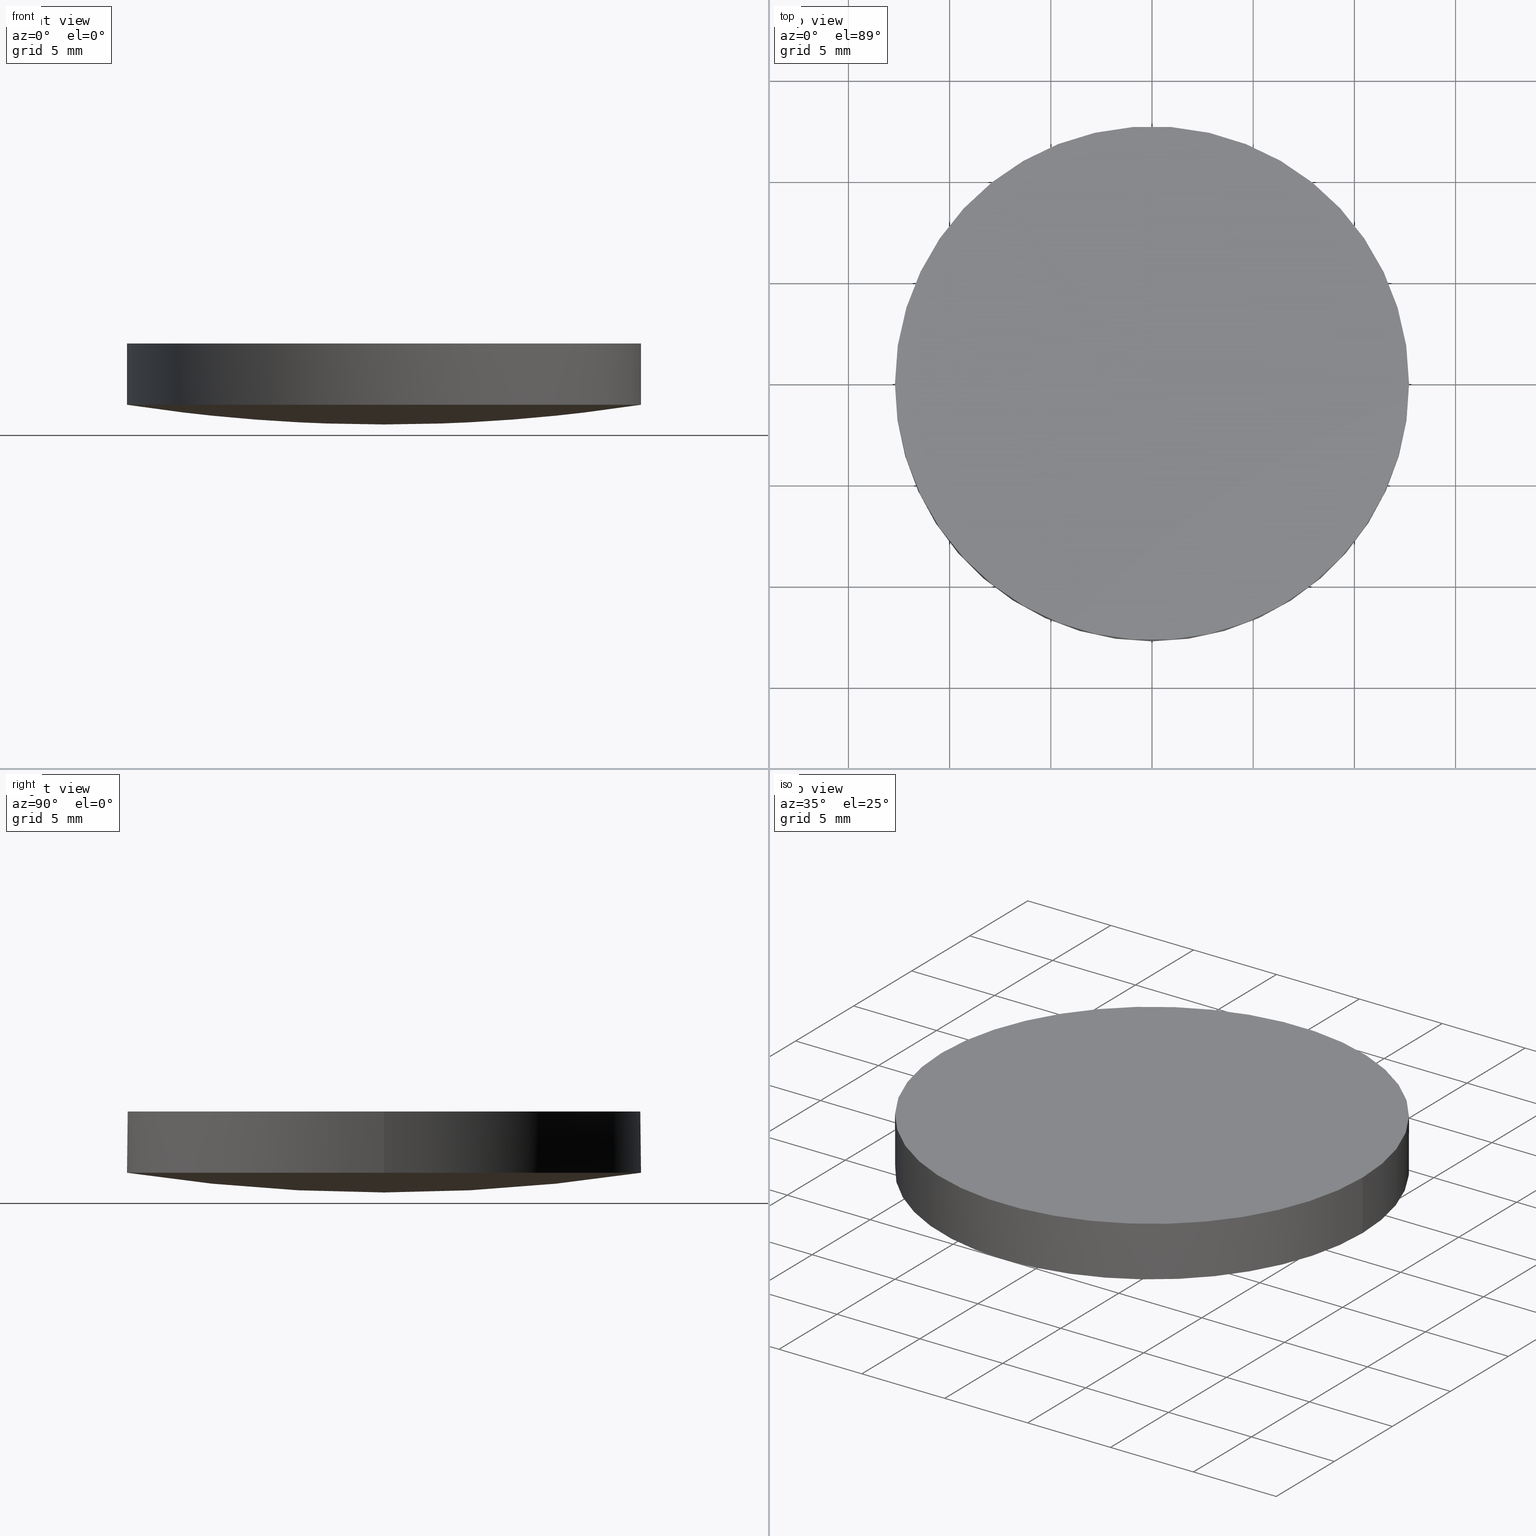
[diagram: canonical four-view strip — front | top / right | iso, engineering-drawing reading convention]
A machine part, canonical four-view strip (front | top / right | iso — engineering-drawing reading convention). The complete STEP part file that produces these views, byte-faithful:
ISO-10303-21;
HEADER;
FILE_DESCRIPTION (( 'STEP AP203' ),
    '1' );
FILE_NAME ('110-1218E UVFS pl-cx 25.4 F175.STEP',
    '2018-12-13T15:01:03',
    ( '' ),
    ( '' ),
    'SwSTEP 2.0',
    'SolidWorks 2017',
    '' );
FILE_SCHEMA (( 'CONFIG_CONTROL_DESIGN' ));
ENDSEC;

DATA;
#1 = CARTESIAN_POINT ( 'NONE',  ( 8.444291087202406800, 12.85118684754875300, 1.322339546411123200 ) ) ;
#2 = DIRECTION ( 'NONE',  ( -0.0000000000000000000, -0.0000000000000000000, -1.000000000000000000 ) ) ;
#3 = DATE_AND_TIME ( #208, #159 ) ;
#4 = EDGE_LOOP ( 'NONE', ( #152, #89, #12, #69, #15 ) ) ;
#5 = CARTESIAN_POINT ( 'NONE',  ( 12.62268370449652400, 12.85118684754875500, 1.970766215155255200 ) ) ;
#6 = CC_DESIGN_DATE_AND_TIME_ASSIGNMENT ( #33, #128, ( #197 ) ) ;
#7 = CARTESIAN_POINT ( 'NONE',  ( -5.030698080332740600E-014, 12.85118684754875500, 0.9971632331299619100 ) ) ;
#8 = DATE_AND_TIME ( #133, #32 ) ;
#9 = DIRECTION ( 'NONE',  ( 1.000000000000000000, 0.0000000000000000000, 0.0000000000000000000 ) ) ;
#10 = CARTESIAN_POINT ( 'NONE',  ( -12.82698051380064200, -4.318186088391136000, 0.6542992638710682900 ) ) ;
#11 = CALENDAR_DATE ( 2018, 13, 12 ) ;
#12 = ORIENTED_EDGE ( 'NONE', *, *, #166, .F. ) ;
#13 = VERTEX_POINT ( 'NONE', #105 ) ;
#14 = PRODUCT_RELATED_PRODUCT_CATEGORY ( 'detail', '', ( #224 ) ) ;
#15 = ORIENTED_EDGE ( 'NONE', *, *, #179, .T. ) ;
#16 = CARTESIAN_POINT ( 'NONE',  ( 8.580961051081475300, 4.318186088391157400, -0.004622122366848341800 ) ) ;
#17 = DIRECTION ( 'NONE',  ( 1.000000000000000000, 0.0000000000000000000, -0.0000000000000000000 ) ) ;
#18 = ADVANCED_FACE ( 'NONE', ( #118 ), #196, .T. ) ;
#19 = EDGE_LOOP ( 'NONE', ( #61, #104, #213, #209, #67 ) ) ;
#20 = CARTESIAN_POINT ( 'NONE',  ( 8.444291087202406800, -12.85118684754873200, 1.322339546411123400 ) ) ;
#21 = DIRECTION ( 'NONE',  ( 0.0000000000000000000, 0.0000000000000000000, 1.000000000000000000 ) ) ;
#22 = DIRECTION ( 'NONE',  ( 1.000000000000000000, 0.0000000000000000000, 0.0000000000000000000 ) ) ;
#23 = ORIENTED_EDGE ( 'NONE', *, *, #179, .F. ) ;
#24 = DIRECTION ( 'NONE',  ( 1.000000000000000000, 0.0000000000000000000, 0.0000000000000000000 ) ) ;
#25 = CARTESIAN_POINT ( 'NONE',  ( 12.69999999999999900, 2.442490654175340100E-015, 4.000000000000000000 ) ) ;
#26 = AXIS2_PLACEMENT_3D ( 'NONE', #141, #57, #41 ) ;
#27 = CARTESIAN_POINT ( 'NONE',  ( 4.996003610813200500E-016, 2.442490654175340100E-015, 0.9737012005033109900 ) ) ;
#28 = CIRCLE ( 'NONE', #82, 83.31000000000000200 ) ;
#29 = PRODUCT_DEFINITION_SHAPE ( 'NONE', 'NONE',  #197 ) ;
#30 = APPROVAL_STATUS ( 'not_yet_approved' ) ;
#31 = PERSON_AND_ORGANIZATION_ROLE ( 'design_owner' ) ;
#32 = LOCAL_TIME ( 17, 1, 3.000000000000000000, #190 ) ;
#33 = DATE_AND_TIME ( #11, #68 ) ;
#34 = ORIENTED_EDGE ( 'NONE', *, *, #234, .F. ) ;
#35 = SECURITY_CLASSIFICATION_LEVEL ( 'unclassified' ) ;
#36 = PERSON_AND_ORGANIZATION ( #158, #230 ) ;
#37 = AXIS2_PLACEMENT_3D ( 'NONE', #183, #73, #203 ) ;
#38 =( BOUNDED_SURFACE ( )  B_SPLINE_SURFACE ( 3, 3, ( 
 ( #200, #139, #77, #144 ),
 ( #10, #56, #227, #113 ),
 ( #42, #204, #171, #58 ),
 ( #206, #189, #92, #7 ) ),
 .UNSPECIFIED., .F., .F., .F. ) 
 B_SPLINE_SURFACE_WITH_KNOTS ( ( 4, 4 ),
 ( 4, 4 ),
 ( 0.0000000000000000000, 1.000000000000000000 ),
 ( 0.0000000000000000000, 1.000000000000000000 ),
 .UNSPECIFIED. ) 
 GEOMETRIC_REPRESENTATION_ITEM ( )  RATIONAL_B_SPLINE_SURFACE ( (
 ( 1.000000000000000000, 0.9980257296944046200, 0.9980257296944046200, 1.000000000000000000),
 ( 0.9920204598637220000, 0.9900619433272699300, 0.9900619433272699300, 0.9920204598637220000),
 ( 0.9920204598637220000, 0.9900619433272699300, 0.9900619433272699300, 0.9920204598637220000),
 ( 1.000000000000000000, 0.9980257296944046200, 0.9980257296944046200, 1.000000000000000000) ) ) 
 REPRESENTATION_ITEM ( '' )  SURFACE ( )  );
#39 = ADVANCED_FACE ( 'NONE', ( #205 ), #168, .T. ) ;
#40 = APPLICATION_PROTOCOL_DEFINITION ( 'international standard', 'config_control_design', 1994, #140 ) ;
#41 = DIRECTION ( 'NONE',  ( 1.000000000000000000, 0.0000000000000000000, 0.0000000000000000000 ) ) ;
#42 = CARTESIAN_POINT ( 'NONE',  ( -12.82698051380064200, 4.318186088391159100, 0.6542992638710675200 ) ) ;
#43 = ADVANCED_BREP_SHAPE_REPRESENTATION ( '110-1218E UVFS pl-cx 25.4 F175', ( #148, #65 ), #191 ) ;
#44 = PERSON_AND_ORGANIZATION_ROLE ( 'creator' ) ;
#45 = AXIS2_PLACEMENT_3D ( 'NONE', #27, #169, #228 ) ;
#46 = AXIS2_PLACEMENT_3D ( 'NONE', #188, #91, #9 ) ;
#47 = PERSON_AND_ORGANIZATION ( #158, #230 ) ;
#48 = FACE_OUTER_BOUND ( 'NONE', #19, .T. ) ;
#49 = CARTESIAN_POINT ( 'NONE',  ( 0.0000000000000000000, 26.11199999999999800, 4.000000000000000000 ) ) ;
#50 = CARTESIAN_POINT ( 'NONE',  ( -2.948672364854027000E-014, -4.318186088391136000, -0.3350613801073441000 ) ) ;
#51 = CARTESIAN_POINT ( 'NONE',  ( 4.228406556729891200, 12.85118684754875300, 0.9971632331299675700 ) ) ;
#52 = COORDINATED_UNIVERSAL_TIME_OFFSET ( 2, 0, .AHEAD. ) ;
#53 = CARTESIAN_POINT ( 'NONE',  ( -12.69999999999999900, 3.997792089092478900E-015, 0.9737012005033109900 ) ) ;
#54 =( LENGTH_UNIT ( ) NAMED_UNIT ( * ) SI_UNIT ( .MILLI., .METRE. ) );
#55 = VECTOR ( 'NONE', #201, 1000.000000000000000 ) ;
#56 = CARTESIAN_POINT ( 'NONE',  ( -8.580961051081519700, -4.318186088391136900, -0.004622122366847799700 ) ) ;
#57 = DIRECTION ( 'NONE',  ( -0.0000000000000000000, -0.0000000000000000000, -1.000000000000000000 ) ) ;
#58 = CARTESIAN_POINT ( 'NONE',  ( -5.204170427930421300E-014, 4.318186088391160000, -0.3350613801073520400 ) ) ;
#59 = CC_DESIGN_PERSON_AND_ORGANIZATION_ASSIGNMENT ( #98, #31, ( #224 ) ) ;
#60 = APPROVAL_DATE_TIME ( #114, #223 ) ;
#61 = ORIENTED_EDGE ( 'NONE', *, *, #212, .F. ) ;
#62 = APPROVAL_STATUS ( 'not_yet_approved' ) ;
#63 = EDGE_CURVE ( 'NONE', #74, #120, #150, .T. ) ;
#64 = ORIENTED_EDGE ( 'NONE', *, *, #149, .F. ) ;
#65 = AXIS2_PLACEMENT_3D ( 'NONE', #207, #97, #76 ) ;
#66 = CARTESIAN_POINT ( 'NONE',  ( 8.580961051081475300, -4.318186088391136900, -0.004622122366847365200 ) ) ;
#67 = ORIENTED_EDGE ( 'NONE', *, *, #63, .F. ) ;
#68 = LOCAL_TIME ( 17, 1, 3.000000000000000000, #119 ) ;
#69 = ORIENTED_EDGE ( 'NONE', *, *, #90, .T. ) ;
#70 = APPROVAL ( #186, 'UNSPECIFIED' ) ;
#71 = CARTESIAN_POINT ( 'NONE',  ( 12.69999999999999900, 2.442490654175340100E-015, 0.9737012005033109900 ) ) ;
#72 = DIRECTION ( 'NONE',  ( -0.0000000000000000000, -0.0000000000000000000, -1.000000000000000000 ) ) ;
#73 = DIRECTION ( 'NONE',  ( 0.0000000000000000000, 0.0000000000000000000, 1.000000000000000000 ) ) ;
#74 = VERTEX_POINT ( 'NONE', #181 ) ;
#75 = AXIS2_PLACEMENT_3D ( 'NONE', #49, #121, #17 ) ;
#76 = DIRECTION ( 'NONE',  ( 1.000000000000000000, 0.0000000000000000000, 0.0000000000000000000 ) ) ;
#77 = CARTESIAN_POINT ( 'NONE',  ( -4.228406556729954200, -12.85118684754873200, 0.9971632331299645800 ) ) ;
#78 = FACE_OUTER_BOUND ( 'NONE', #4, .T. ) ;
#79 =( NAMED_UNIT ( * ) SI_UNIT ( $, .STERADIAN. ) SOLID_ANGLE_UNIT ( ) );
#80 = PERSON_AND_ORGANIZATION ( #158, #230 ) ;
#81 = ORIENTED_EDGE ( 'NONE', *, *, #212, .T. ) ;
#82 = AXIS2_PLACEMENT_3D ( 'NONE', #115, #129, #210 ) ;
#83 = APPROVAL ( #30, 'UNSPECIFIED' ) ;
#84 = ADVANCED_FACE ( 'NONE', ( #78 ), #215, .T. ) ;
#85 = CARTESIAN_POINT ( 'NONE',  ( -2.948672364854027000E-014, 4.318186088391159100, -0.3350613801073449900 ) ) ;
#86 = CIRCLE ( 'NONE', #26, 12.69999999999999900 ) ;
#87 = CARTESIAN_POINT ( 'NONE',  ( -2.901708517425187700E-014, -12.85118684754873400, 0.9971632331299690200 ) ) ;
#88 = CARTESIAN_POINT ( 'NONE',  ( 12.69999999999999900, 2.442490654175340100E-015, 0.9737012005033109900 ) ) ;
#89 = ORIENTED_EDGE ( 'NONE', *, *, #217, .F. ) ;
#90 = EDGE_CURVE ( 'NONE', #120, #126, #117, .T. ) ;
#91 = DIRECTION ( 'NONE',  ( 0.0000000000000000000, 0.0000000000000000000, 1.000000000000000000 ) ) ;
#92 = CARTESIAN_POINT ( 'NONE',  ( -4.228406556729954200, 12.85118684754875300, 0.9971632331299645800 ) ) ;
#93 = COORDINATED_UNIVERSAL_TIME_OFFSET ( 2, 0, .AHEAD. ) ;
#94 =( NAMED_UNIT ( * ) PLANE_ANGLE_UNIT ( ) SI_UNIT ( $, .RADIAN. ) );
#95 = APPLICATION_CONTEXT ( 'configuration controlled 3d designs of mechanical parts and assemblies' ) ;
#96 = CC_DESIGN_APPROVAL ( #83, ( #219 ) ) ;
#97 = DIRECTION ( 'NONE',  ( 0.0000000000000000000, 0.0000000000000000000, 1.000000000000000000 ) ) ;
#98 = PERSON_AND_ORGANIZATION ( #158, #230 ) ;
#99 = LINE ( 'NONE', #157, #55 ) ;
#100 = APPROVAL_ROLE ( '' ) ;
#101 = COORDINATED_UNIVERSAL_TIME_OFFSET ( 2, 0, .AHEAD. ) ;
#102 = PERSON_AND_ORGANIZATION ( #158, #230 ) ;
#103 = CC_DESIGN_PERSON_AND_ORGANIZATION_ASSIGNMENT ( #151, #44, ( #219 ) ) ;
#104 = ORIENTED_EDGE ( 'NONE', *, *, #175, .T. ) ;
#105 = CARTESIAN_POINT ( 'NONE',  ( -12.69999999999999900, 3.997792089092478900E-015, 4.000000000000000000 ) ) ;
#106 = CC_DESIGN_APPROVAL ( #223, ( #163 ) ) ;
#107 = VECTOR ( 'NONE', #21, 1000.000000000000000 ) ;
#108 = CIRCLE ( 'NONE', #45, 12.69999999999999900 ) ;
#109 = CARTESIAN_POINT ( 'NONE',  ( 4.996003610813200500E-016, 2.442490654175340100E-015, 0.9737012005033109900 ) ) ;
#110 = AXIS2_PLACEMENT_3D ( 'NONE', #220, #184, #161 ) ;
#111 = MECHANICAL_CONTEXT ( 'NONE', #95, 'mechanical' ) ;
#112 = PERSON_AND_ORGANIZATION_ROLE ( 'creator' ) ;
#113 = CARTESIAN_POINT ( 'NONE',  ( -5.204170427930421300E-014, -4.318186088391135200, -0.3350613801073512600 ) ) ;
#114 = DATE_AND_TIME ( #154, #164 ) ;
#115 = CARTESIAN_POINT ( 'NONE',  ( 0.0000000000000000000, 7.105427357601000300E-015, 83.31000000000000200 ) ) ;
#116 = LOCAL_TIME ( 17, 1, 3.000000000000000000, #52 ) ;
#117 = LINE ( 'NONE', #71, #107 ) ;
#118 = FACE_OUTER_BOUND ( 'NONE', #138, .T. ) ;
#119 = COORDINATED_UNIVERSAL_TIME_OFFSET ( 2, 0, .AHEAD. ) ;
#120 = VERTEX_POINT ( 'NONE', #88 ) ;
#121 = DIRECTION ( 'NONE',  ( 0.0000000000000000000, 0.0000000000000000000, 1.000000000000000000 ) ) ;
#122 = CC_DESIGN_APPROVAL ( #70, ( #197 ) ) ;
#123 = PERSON_AND_ORGANIZATION ( #158, #230 ) ;
#124 = SHAPE_DEFINITION_REPRESENTATION ( #29, #43 ) ;
#125 = APPROVAL_DATE_TIME ( #3, #83 ) ;
#126 = VERTEX_POINT ( 'NONE', #25 ) ;
#127 = CARTESIAN_POINT ( 'NONE',  ( 4.996003610813200500E-016, 2.442490654175340100E-015, 0.9737012005033109900 ) ) ;
#128 = DATE_TIME_ROLE ( 'creation_date' ) ;
#129 = DIRECTION ( 'NONE',  ( 1.000000000000000000, 1.229598738253770100E-031, -3.525219918788039800E-016 ) ) ;
#130 = APPLICATION_PROTOCOL_DEFINITION ( 'international standard', 'config_control_design', 1994, #95 ) ;
#131 = CIRCLE ( 'NONE', #194, 12.69999999999999900 ) ;
#132 = UNCERTAINTY_MEASURE_WITH_UNIT (LENGTH_MEASURE( 1.000000000000000100E-005 ), #54, 'distance_accuracy_value', 'NONE');
#133 = CALENDAR_DATE ( 2018, 13, 12 ) ;
#134 = CC_DESIGN_DATE_AND_TIME_ASSIGNMENT ( #8, #173, ( #163 ) ) ;
#135 = ORIENTED_EDGE ( 'NONE', *, *, #217, .T. ) ;
#136 = AXIS2_PLACEMENT_3D ( 'NONE', #222, #2, #24 ) ;
#137 = CARTESIAN_POINT ( 'NONE',  ( 4.228406556729891200, -12.85118684754873200, 0.9971632331299675700 ) ) ;
#138 = EDGE_LOOP ( 'NONE', ( #23, #64 ) ) ;
#139 = CARTESIAN_POINT ( 'NONE',  ( -8.444291087202453000, -12.85118684754873200, 1.322339546411122700 ) ) ;
#140 = APPLICATION_CONTEXT ( 'configuration controlled 3d designs of mechanical parts and assemblies' ) ;
#141 = CARTESIAN_POINT ( 'NONE',  ( 4.996003610813200500E-016, 2.442490654175340100E-015, 4.000000000000000000 ) ) ;
#142 = CC_DESIGN_SECURITY_CLASSIFICATION ( #163, ( #219 ) ) ;
#143 = APPROVAL_ROLE ( '' ) ;
#144 = CARTESIAN_POINT ( 'NONE',  ( -5.030698080332740600E-014, -12.85118684754873400, 0.9971632331299619100 ) ) ;
#145 = APPROVAL_PERSON_ORGANIZATION ( #123, #223, #147 ) ;
#146 = CLOSED_SHELL ( 'NONE', ( #39, #233, #231, #84, #18 ) ) ;
#147 = APPROVAL_ROLE ( '' ) ;
#148 = MANIFOLD_SOLID_BREP ( 'Imported1', #146 ) ;
#149 = EDGE_CURVE ( 'NONE', #13, #126, #155, .T. ) ;
#150 = CIRCLE ( 'NONE', #110, 12.69999999999999900 ) ;
#151 = PERSON_AND_ORGANIZATION ( #158, #230 ) ;
#152 = ORIENTED_EDGE ( 'NONE', *, *, #175, .F. ) ;
#153 = CARTESIAN_POINT ( 'NONE',  ( 12.62268370449652200, -12.85118684754873400, 1.970766215155255200 ) ) ;
#154 = CALENDAR_DATE ( 2018, 13, 12 ) ;
#155 = CIRCLE ( 'NONE', #136, 12.69999999999999900 ) ;
#156 = CARTESIAN_POINT ( 'NONE',  ( 4.296842872508972500, -4.318186088391136900, -0.3350613801073454900 ) ) ;
#157 = CARTESIAN_POINT ( 'NONE',  ( -12.69999999999999900, 3.997792089092478900E-015, 0.9737012005033109900 ) ) ;
#158 = PERSON ( 'UNSPECIFIED', 'UNSPECIFIED', 'UNSPECIFIED', ('UNSPECIFIED'), ('UNSPECIFIED'), ('UNSPECIFIED') ) ;
#159 = LOCAL_TIME ( 17, 1, 3.000000000000000000, #93 ) ;
#160 = CIRCLE ( 'NONE', #162, 12.69999999999999900 ) ;
#161 = DIRECTION ( 'NONE',  ( 1.000000000000000000, -8.881784197001252300E-016, 0.0000000000000000000 ) ) ;
#162 = AXIS2_PLACEMENT_3D ( 'NONE', #109, #72, #22 ) ;
#163 = SECURITY_CLASSIFICATION ( '', '', #35 ) ;
#164 = LOCAL_TIME ( 17, 1, 3.000000000000000000, #101 ) ;
#165 = VERTEX_POINT ( 'NONE', #226 ) ;
#166 = EDGE_CURVE ( 'NONE', #120, #165, #160, .T. ) ;
#167 = DIRECTION ( 'NONE',  ( 1.000000000000000000, 8.881784197001252300E-016, 0.0000000000000000000 ) ) ;
#168 =( BOUNDED_SURFACE ( )  B_SPLINE_SURFACE ( 3, 3, ( 
 ( #87, #137, #20, #153 ),
 ( #50, #156, #66, #193 ),
 ( #85, #216, #16, #178 ),
 ( #235, #51, #1, #5 ) ),
 .UNSPECIFIED., .F., .F., .F. ) 
 B_SPLINE_SURFACE_WITH_KNOTS ( ( 4, 4 ),
 ( 4, 4 ),
 ( 0.0000000000000000000, 1.000000000000000000 ),
 ( 0.0000000000000000000, 1.000000000000000000 ),
 .UNSPECIFIED. ) 
 GEOMETRIC_REPRESENTATION_ITEM ( )  RATIONAL_B_SPLINE_SURFACE ( (
 ( 1.000000000000000000, 0.9980257296944046200, 0.9980257296944046200, 1.000000000000000000),
 ( 0.9920204598637220000, 0.9900619433272699300, 0.9900619433272699300, 0.9920204598637220000),
 ( 0.9920204598637220000, 0.9900619433272699300, 0.9900619433272699300, 0.9920204598637220000),
 ( 1.000000000000000000, 0.9980257296944046200, 0.9980257296944046200, 1.000000000000000000) ) ) 
 REPRESENTATION_ITEM ( '' )  SURFACE ( )  );
#169 = DIRECTION ( 'NONE',  ( -0.0000000000000000000, -0.0000000000000000000, -1.000000000000000000 ) ) ;
#170 = ORIENTED_EDGE ( 'NONE', *, *, #234, .T. ) ;
#171 = CARTESIAN_POINT ( 'NONE',  ( -4.296842872509038200, 4.318186088391158300, -0.3350613801073493700 ) ) ;
#172 = PERSON_AND_ORGANIZATION_ROLE ( 'design_supplier' ) ;
#173 = DATE_TIME_ROLE ( 'classification_date' ) ;
#174 = PERSON_AND_ORGANIZATION_ROLE ( 'classification_officer' ) ;
#175 = EDGE_CURVE ( 'NONE', #177, #13, #99, .T. ) ;
#176 = CALENDAR_DATE ( 2018, 13, 12 ) ;
#177 = VERTEX_POINT ( 'NONE', #53 ) ;
#178 = CARTESIAN_POINT ( 'NONE',  ( 12.82698051380061300, 4.318186088391159100, 0.6542992638710691800 ) ) ;
#179 = EDGE_CURVE ( 'NONE', #126, #13, #86, .T. ) ;
#180 = APPROVAL_PERSON_ORGANIZATION ( #187, #70, #143 ) ;
#181 = CARTESIAN_POINT ( 'NONE',  ( -2.902535605672694400E-014, 12.70000000000003300, 0.9737012005033203200 ) ) ;
#182 = DESIGN_CONTEXT ( 'detailed design', #140, 'design' ) ;
#183 = CARTESIAN_POINT ( 'NONE',  ( 4.996003610813200500E-016, 2.442490654175340100E-015, 0.9737012005033109900 ) ) ;
#184 = DIRECTION ( 'NONE',  ( -0.0000000000000000000, -0.0000000000000000000, -1.000000000000000000 ) ) ;
#185 = DIRECTION ( 'NONE',  ( -0.0000000000000000000, -0.0000000000000000000, -1.000000000000000000 ) ) ;
#186 = APPROVAL_STATUS ( 'not_yet_approved' ) ;
#187 = PERSON_AND_ORGANIZATION ( #158, #230 ) ;
#188 = CARTESIAN_POINT ( 'NONE',  ( 4.996003610813200500E-016, 2.442490654175340100E-015, 0.9737012005033109900 ) ) ;
#189 = CARTESIAN_POINT ( 'NONE',  ( -8.444291087202453000, 12.85118684754875300, 1.322339546411122700 ) ) ;
#190 = COORDINATED_UNIVERSAL_TIME_OFFSET ( 2, 0, .AHEAD. ) ;
#191 =( GEOMETRIC_REPRESENTATION_CONTEXT ( 3 ) GLOBAL_UNCERTAINTY_ASSIGNED_CONTEXT ( ( #132 ) ) GLOBAL_UNIT_ASSIGNED_CONTEXT ( ( #54, #94, #79 ) ) REPRESENTATION_CONTEXT ( 'NONE', 'WORKASPACE' ) );
#192 = EDGE_LOOP ( 'NONE', ( #34, #135, #81 ) ) ;
#193 = CARTESIAN_POINT ( 'NONE',  ( 12.82698051380061200, -4.318186088391136000, 0.6542992638710700700 ) ) ;
#194 = AXIS2_PLACEMENT_3D ( 'NONE', #127, #185, #167 ) ;
#195 = EDGE_LOOP ( 'NONE', ( #221, #170, #218 ) ) ;
#196 = PLANE ( 'NONE',  #75 ) ;
#197 = PRODUCT_DEFINITION ( 'UNKNOWN', '', #219, #182 ) ;
#198 = DATE_AND_TIME ( #176, #116 ) ;
#199 = FACE_OUTER_BOUND ( 'NONE', #192, .T. ) ;
#200 = CARTESIAN_POINT ( 'NONE',  ( -12.62268370449655000, -12.85118684754873400, 1.970766215155253400 ) ) ;
#201 = DIRECTION ( 'NONE',  ( 0.0000000000000000000, 0.0000000000000000000, 1.000000000000000000 ) ) ;
#202 = CC_DESIGN_PERSON_AND_ORGANIZATION_ASSIGNMENT ( #80, #174, ( #163 ) ) ;
#203 = DIRECTION ( 'NONE',  ( 1.000000000000000000, 0.0000000000000000000, 0.0000000000000000000 ) ) ;
#204 = CARTESIAN_POINT ( 'NONE',  ( -8.580961051081518000, 4.318186088391157400, -0.004622122366848666200 ) ) ;
#205 = FACE_OUTER_BOUND ( 'NONE', #195, .T. ) ;
#206 = CARTESIAN_POINT ( 'NONE',  ( -12.62268370449655000, 12.85118684754875500, 1.970766215155253400 ) ) ;
#207 = CARTESIAN_POINT ( 'NONE',  ( 0.0000000000000000000, 0.0000000000000000000, 0.0000000000000000000 ) ) ;
#208 = CALENDAR_DATE ( 2018, 13, 12 ) ;
#209 = ORIENTED_EDGE ( 'NONE', *, *, #90, .F. ) ;
#210 = DIRECTION ( 'NONE',  ( 1.970575965456774000E-046, -1.000000000000000000, -3.331601922413745500E-016 ) ) ;
#211 = CC_DESIGN_PERSON_AND_ORGANIZATION_ASSIGNMENT ( #36, #112, ( #197 ) ) ;
#212 = EDGE_CURVE ( 'NONE', #177, #74, #131, .T. ) ;
#213 = ORIENTED_EDGE ( 'NONE', *, *, #149, .T. ) ;
#214 = APPROVAL_PERSON_ORGANIZATION ( #102, #83, #100 ) ;
#215 = CYLINDRICAL_SURFACE ( 'NONE', #37, 12.69999999999999900 ) ;
#216 = CARTESIAN_POINT ( 'NONE',  ( 4.296842872508972500, 4.318186088391157400, -0.3350613801073463700 ) ) ;
#217 = EDGE_CURVE ( 'NONE', #165, #177, #108, .T. ) ;
#218 = ORIENTED_EDGE ( 'NONE', *, *, #63, .T. ) ;
#219 = PRODUCT_DEFINITION_FORMATION_WITH_SPECIFIED_SOURCE ( 'ANY', '', #224, .NOT_KNOWN. ) ;
#220 = CARTESIAN_POINT ( 'NONE',  ( 4.996003610813200500E-016, 2.442490654175340100E-015, 0.9737012005033109900 ) ) ;
#221 = ORIENTED_EDGE ( 'NONE', *, *, #166, .T. ) ;
#222 = CARTESIAN_POINT ( 'NONE',  ( 4.996003610813200500E-016, 2.442490654175340100E-015, 4.000000000000000000 ) ) ;
#223 = APPROVAL ( #62, 'UNSPECIFIED' ) ;
#224 = PRODUCT ( '110-1218E UVFS pl-cx 25.4 F175', '110-1218E UVFS pl-cx 25.4 F175', '', ( #111 ) ) ;
#225 = APPROVAL_DATE_TIME ( #198, #70 ) ;
#226 = CARTESIAN_POINT ( 'NONE',  ( -2.902535605672694400E-014, -12.70000000000002400, 0.9737012005033203200 ) ) ;
#227 = CARTESIAN_POINT ( 'NONE',  ( -4.296842872509038200, -4.318186088391136000, -0.3350613801073484800 ) ) ;
#228 = DIRECTION ( 'NONE',  ( 1.000000000000000000, 8.881784197001252300E-016, 0.0000000000000000000 ) ) ;
#229 = CYLINDRICAL_SURFACE ( 'NONE', #46, 12.69999999999999900 ) ;
#230 = ORGANIZATION ( 'UNSPECIFIED', 'UNSPECIFIED', '' ) ;
#231 = ADVANCED_FACE ( 'NONE', ( #199 ), #38, .T. ) ;
#232 = CC_DESIGN_PERSON_AND_ORGANIZATION_ASSIGNMENT ( #47, #172, ( #219 ) ) ;
#233 = ADVANCED_FACE ( 'NONE', ( #48 ), #229, .T. ) ;
#234 = EDGE_CURVE ( 'NONE', #165, #74, #28, .T. ) ;
#235 = CARTESIAN_POINT ( 'NONE',  ( -2.901708517425187700E-014, 12.85118684754875500, 0.9971632331299690200 ) ) ;
ENDSEC;
END-ISO-10303-21;
